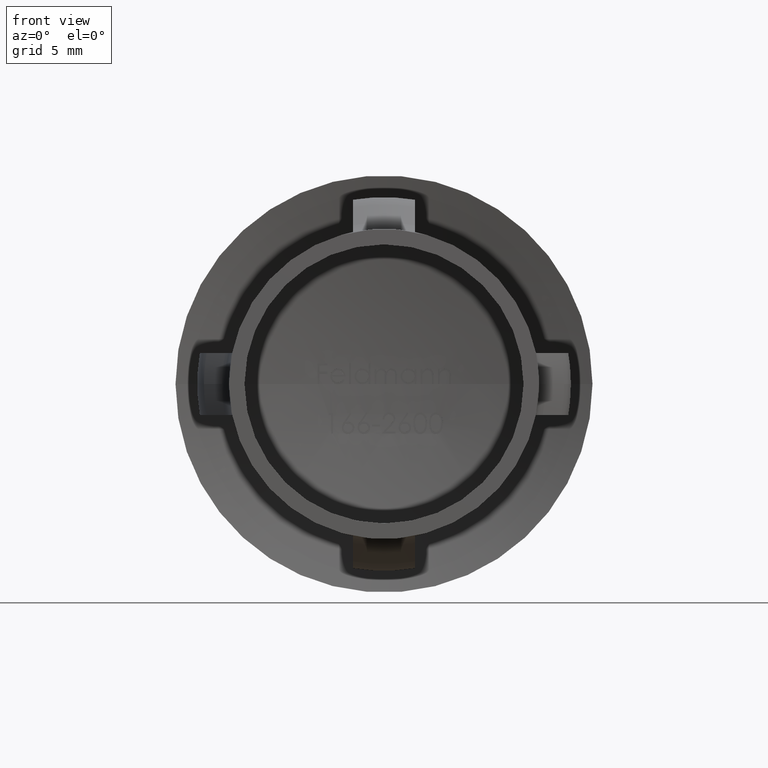
[diagram: clean part render]
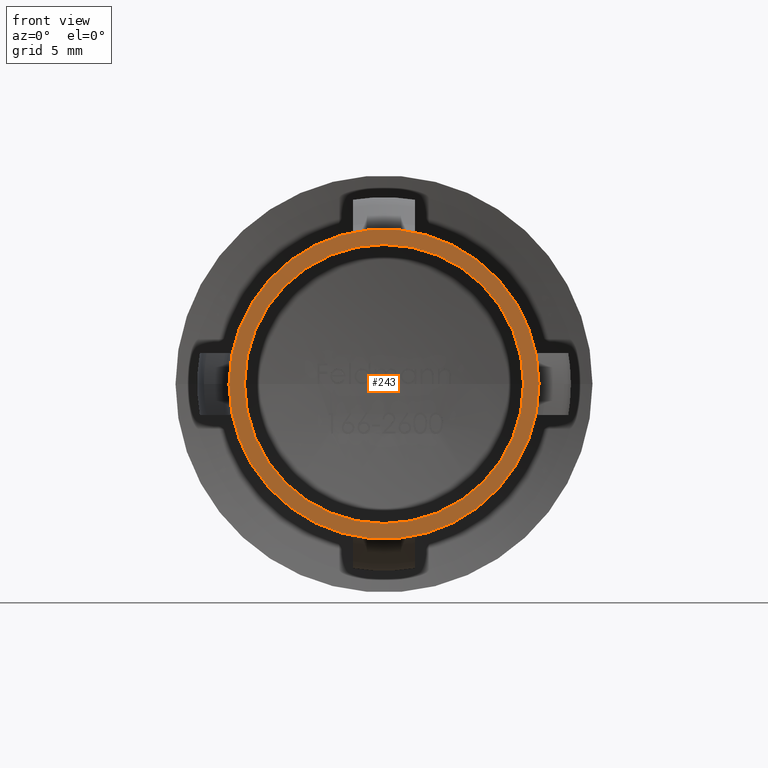
[diagram: same view with one face highlighted and labeled with its STEP entity id]
A machine part, front view. The second image highlights one B-rep face of the part: STEP entity #243.
In plain terms, the highlighted planar face has unit normal (-0, -1, 0).
Its self-contained STEP definition (entity closure, byte-faithful):
#148 = CARTESIAN_POINT ( 'NONE',  ( -7.407398629322664971E-14, 2.775557561562891351E-14, 0.000000000000000000 ) ) ;
#243 = ADVANCED_FACE ( 'NONE', ( #1164, #6793 ), #13023, .T. ) ;
#505 = CIRCLE ( 'NONE', #4138, 9.000000000000076383 ) ;
#908 = ORIENTED_EDGE ( 'NONE', *, *, #1526, .F. ) ;
#1103 = DIRECTION ( 'NONE',  ( -2.904862207577519418E-15, -1.000000000000000000, -0.000000000000000000 ) ) ;
#1164 = FACE_OUTER_BOUND ( 'NONE', #7210, .T. ) ;
#1526 = EDGE_CURVE ( 'NONE', #6685, #8773, #11614, .T. ) ;
#1670 = CARTESIAN_POINT ( 'NONE',  ( -9.000000000000150990, 5.389933548382681073E-14, 1.102182119232631716E-15 ) ) ;
#1813 = DIRECTION ( 'NONE',  ( -2.904862207577519418E-15, -1.000000000000000000, 0.000000000000000000 ) ) ;
#1974 = DIRECTION ( 'NONE',  ( 1.000000000000000000, -2.904862207577519024E-15, 0.000000000000000000 ) ) ;
#2548 = CARTESIAN_POINT ( 'NONE',  ( 10.00000000000000178, -1.293046460146503919E-15, 0.000000000000000000 ) ) ;
#3221 = EDGE_CURVE ( 'NONE', #8636, #7319, #4376, .T. ) ;
#4023 = ORIENTED_EDGE ( 'NONE', *, *, #7699, .T. ) ;
#4037 = EDGE_CURVE ( 'NONE', #8773, #6685, #505, .T. ) ;
#4138 = AXIS2_PLACEMENT_3D ( 'NONE', #7544, #4269, #4310 ) ;
#4269 = DIRECTION ( 'NONE',  ( -2.904862207577519418E-15, -1.000000000000000000, -0.000000000000000000 ) ) ;
#4310 = DIRECTION ( 'NONE',  ( 1.000000000000000000, -2.904862207577519024E-15, 0.000000000000000000 ) ) ;
#4376 = CIRCLE ( 'NONE', #13749, 10.00000000000007638 ) ;
#5126 = AXIS2_PLACEMENT_3D ( 'NONE', #7534, #7680, #1974 ) ;
#6294 = CARTESIAN_POINT ( 'NONE',  ( 9.000000000000001776, 1.299350253895341760E-15, 0.000000000000000000 ) ) ;
#6685 = VERTEX_POINT ( 'NONE', #13174 ) ;
#6716 = DIRECTION ( 'NONE',  ( -2.904862207577519418E-15, -1.000000000000000000, -0.000000000000000000 ) ) ;
#6793 = FACE_BOUND ( 'NONE', #10572, .T. ) ;
#7210 = EDGE_LOOP ( 'NONE', ( #11808, #4023 ) ) ;
#7319 = VERTEX_POINT ( 'NONE', #9018 ) ;
#7417 = DIRECTION ( 'NONE',  ( 1.000000000000000000, -2.904862207577519418E-15, 0.000000000000000000 ) ) ;
#7534 = CARTESIAN_POINT ( 'NONE',  ( -7.407398629322664971E-14, 2.775557561562891351E-14, 0.000000000000000000 ) ) ;
#7544 = CARTESIAN_POINT ( 'NONE',  ( -7.407398629322664971E-14, 2.775557561562891351E-14, 0.000000000000000000 ) ) ;
#7680 = DIRECTION ( 'NONE',  ( -2.904862207577519418E-15, -1.000000000000000000, -0.000000000000000000 ) ) ;
#7699 = EDGE_CURVE ( 'NONE', #7319, #8636, #9583, .T. ) ;
#7835 = DIRECTION ( 'NONE',  ( 1.000000000000000000, -2.904862207577519813E-15, 0.000000000000000000 ) ) ;
#8042 = DIRECTION ( 'NONE',  ( 1.000000000000000000, -2.904862207577519813E-15, 0.000000000000000000 ) ) ;
#8636 = VERTEX_POINT ( 'NONE', #2548 ) ;
#8773 = VERTEX_POINT ( 'NONE', #1670 ) ;
#9018 = CARTESIAN_POINT ( 'NONE',  ( -10.00000000000015099, 5.680419769140433173E-14, 1.224646799147367062E-15 ) ) ;
#9583 = CIRCLE ( 'NONE', #12343, 10.00000000000007638 ) ;
#10572 = EDGE_LOOP ( 'NONE', ( #908, #13330 ) ) ;
#11614 = CIRCLE ( 'NONE', #5126, 9.000000000000076383 ) ;
#11808 = ORIENTED_EDGE ( 'NONE', *, *, #3221, .T. ) ;
#12177 = AXIS2_PLACEMENT_3D ( 'NONE', #6294, #1813, #7417 ) ;
#12343 = AXIS2_PLACEMENT_3D ( 'NONE', #148, #1103, #8042 ) ;
#13023 = PLANE ( 'NONE',  #12177 ) ;
#13174 = CARTESIAN_POINT ( 'NONE',  ( 9.000000000000001776, 1.611815747431018063E-15, 0.000000000000000000 ) ) ;
#13330 = ORIENTED_EDGE ( 'NONE', *, *, #4037, .F. ) ;
#13749 = AXIS2_PLACEMENT_3D ( 'NONE', #13917, #6716, #7835 ) ;
#13917 = CARTESIAN_POINT ( 'NONE',  ( -7.407398629322664971E-14, 2.775557561562891351E-14, 0.000000000000000000 ) ) ;